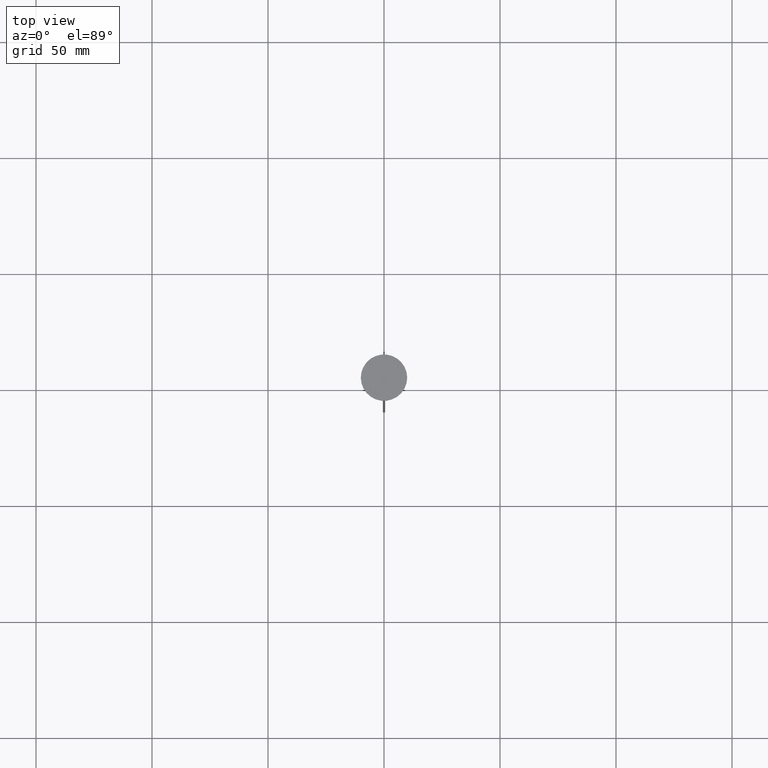
[diagram: clean part render]
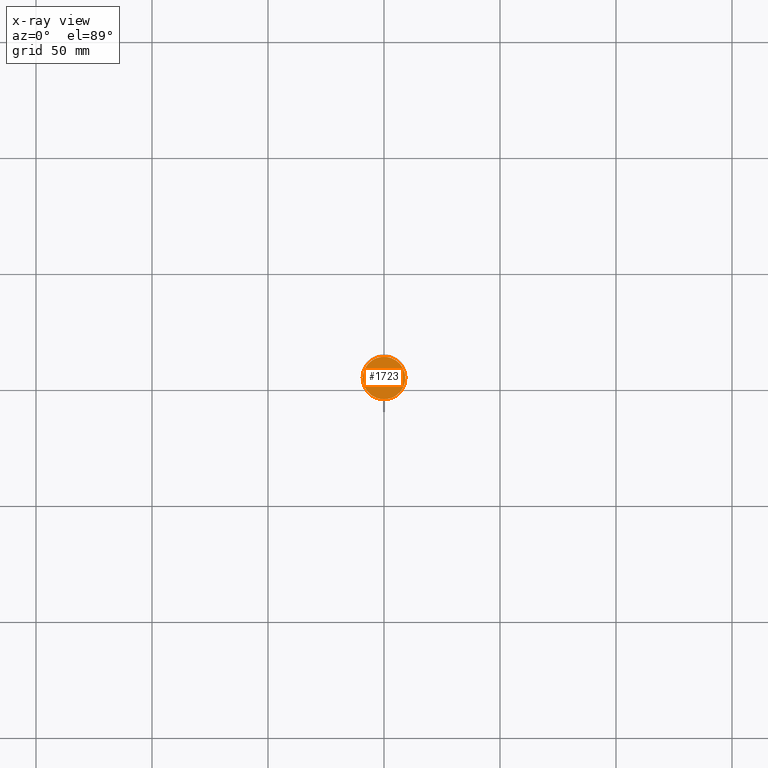
[diagram: x-ray — body ghosted, one internal face saturated and labeled with its STEP entity id]
A machine part, top view, then the same camera in x-ray: the body is ghosted and one INTERNAL B-rep face — a face not visible from any outside direction — is saturated and labeled: STEP entity #1723.
In plain terms, the highlighted planar face has unit normal (0, 0, -1).
Its self-contained STEP definition (entity closure, byte-faithful):
#173 = EDGE_LOOP ( 'NONE', ( #1804, #1716 ) ) ;
#220 = AXIS2_PLACEMENT_3D ( 'NONE', #1415, #2653, #2263 ) ;
#424 = DIRECTION ( 'NONE',  ( -0.000000000000000000, -0.000000000000000000, 1.000000000000000000 ) ) ;
#999 = CIRCLE ( 'NONE', #1816, 9.200000000000001066 ) ;
#1008 = FACE_OUTER_BOUND ( 'NONE', #173, .T. ) ;
#1351 = VERTEX_POINT ( 'NONE', #2537 ) ;
#1415 = CARTESIAN_POINT ( 'NONE',  ( 0.000000000000000000, 0.000000000000000000, -12.00000000000000000 ) ) ;
#1425 = VERTEX_POINT ( 'NONE', #2362 ) ;
#1682 = CIRCLE ( 'NONE', #1990, 9.200000000000001066 ) ;
#1716 = ORIENTED_EDGE ( 'NONE', *, *, #2126, .T. ) ;
#1723 = ADVANCED_FACE ( 'NONE', ( #1008 ), #1829, .F. ) ;
#1804 = ORIENTED_EDGE ( 'NONE', *, *, #2222, .T. ) ;
#1816 = AXIS2_PLACEMENT_3D ( 'NONE', #2264, #2093, #1889 ) ;
#1829 = PLANE ( 'NONE',  #220 ) ;
#1889 = DIRECTION ( 'NONE',  ( -1.000000000000000000, 0.000000000000000000, 0.000000000000000000 ) ) ;
#1990 = AXIS2_PLACEMENT_3D ( 'NONE', #2274, #424, #2490 ) ;
#2093 = DIRECTION ( 'NONE',  ( -0.000000000000000000, -0.000000000000000000, 1.000000000000000000 ) ) ;
#2126 = EDGE_CURVE ( 'NONE', #1425, #1351, #1682, .T. ) ;
#2222 = EDGE_CURVE ( 'NONE', #1351, #1425, #999, .T. ) ;
#2263 = DIRECTION ( 'NONE',  ( -1.000000000000000000, 0.000000000000000000, -0.000000000000000000 ) ) ;
#2264 = CARTESIAN_POINT ( 'NONE',  ( 0.000000000000000000, 0.000000000000000000, -12.00000000000000000 ) ) ;
#2274 = CARTESIAN_POINT ( 'NONE',  ( 0.000000000000000000, 0.000000000000000000, -12.00000000000000000 ) ) ;
#2362 = CARTESIAN_POINT ( 'NONE',  ( 9.200000000000001066, 1.145044757202775450E-15, -12.00000000000000000 ) ) ;
#2490 = DIRECTION ( 'NONE',  ( -1.000000000000000000, 0.000000000000000000, 0.000000000000000000 ) ) ;
#2537 = CARTESIAN_POINT ( 'NONE',  ( -9.200000000000001066, 0.000000000000000000, -12.00000000000000000 ) ) ;
#2653 = DIRECTION ( 'NONE',  ( 0.000000000000000000, 0.000000000000000000, -1.000000000000000000 ) ) ;